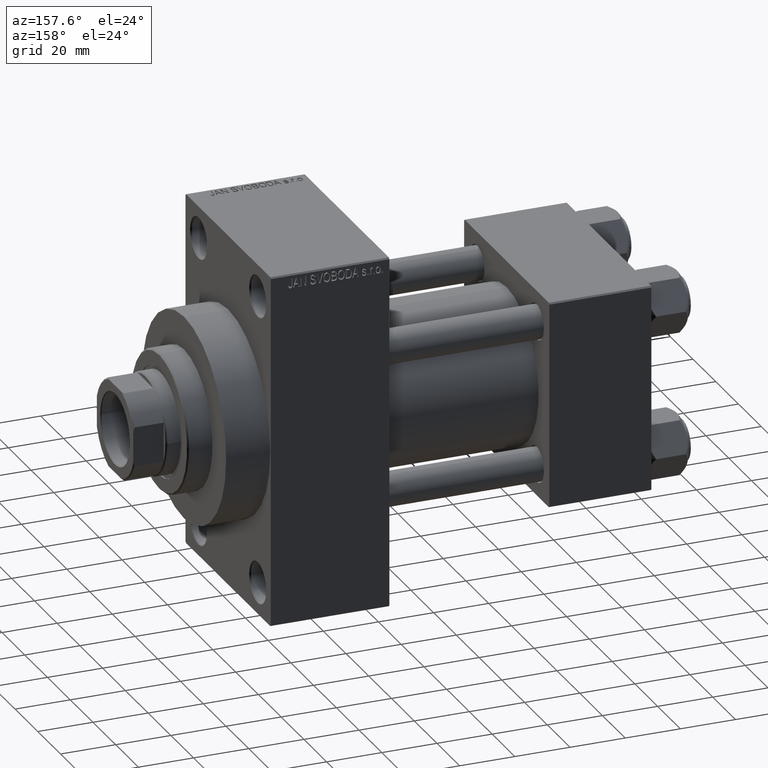
[diagram: clean part render]
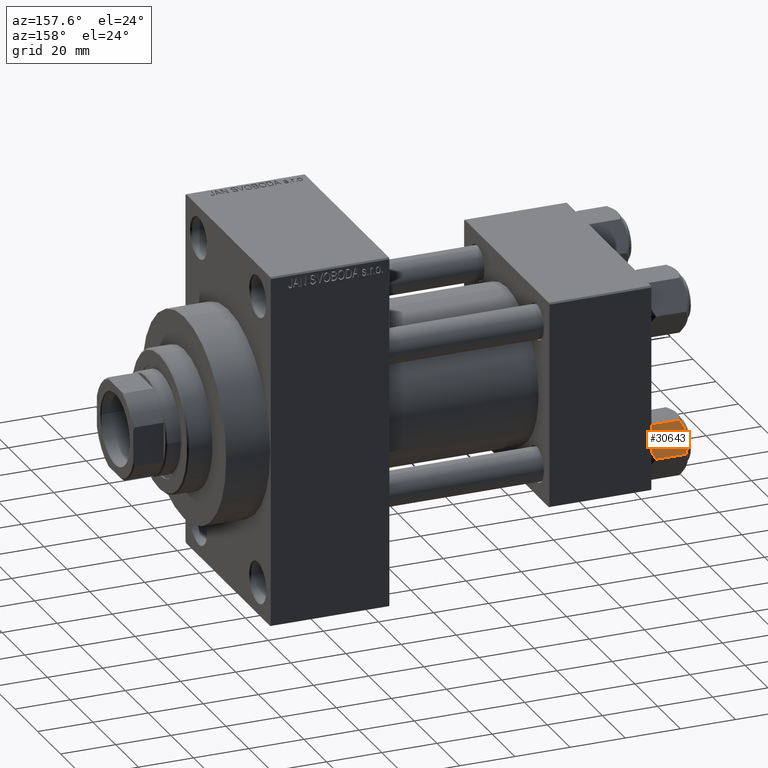
[diagram: same view with one face highlighted and labeled with its STEP entity id]
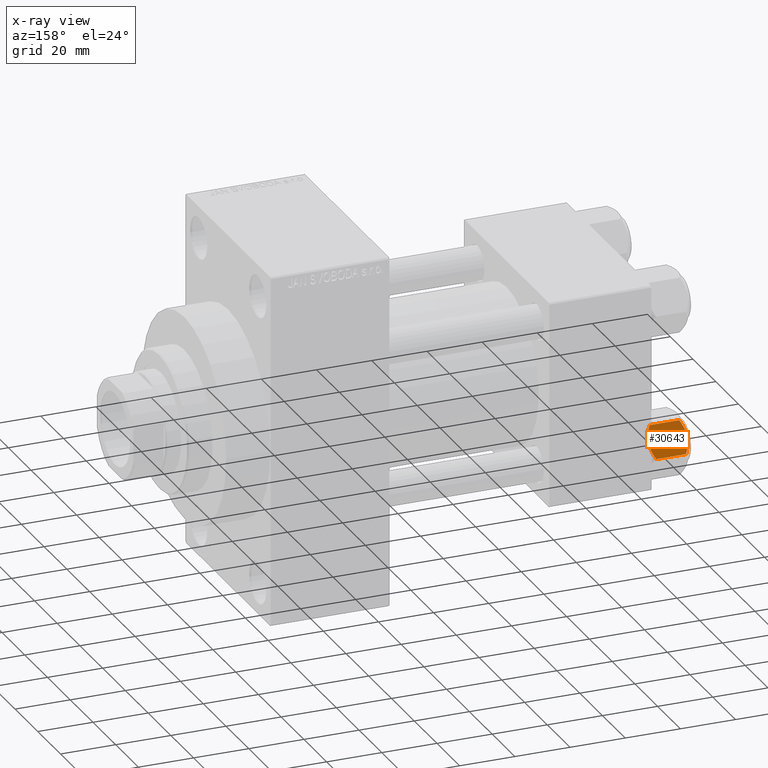
[diagram: x-ray of the same camera — body ghosted, the highlighted face saturated]
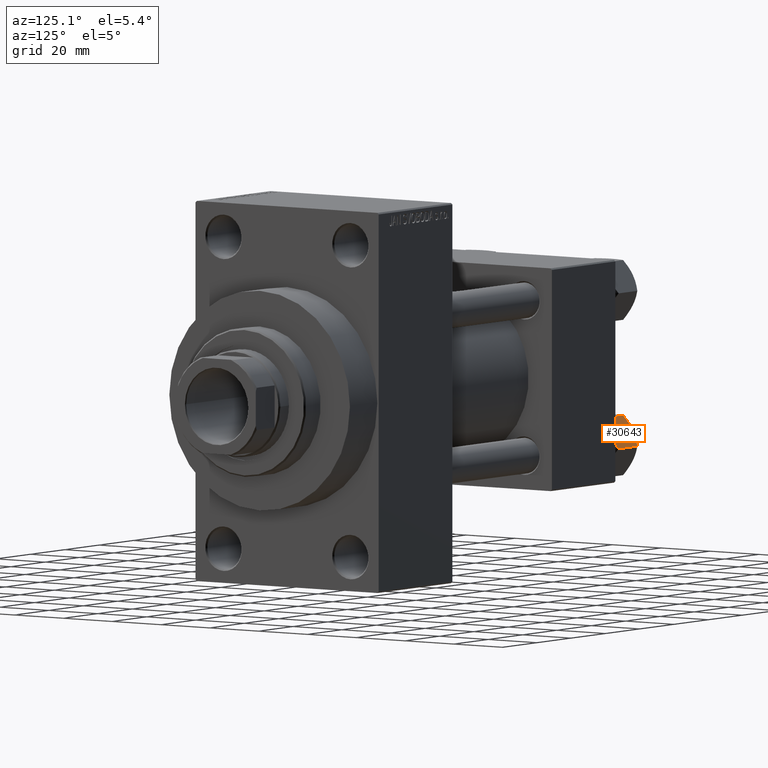
[diagram: same view with one face highlighted and labeled with its STEP entity id]
A machine part, auxiliary view. The second image highlights one B-rep face of the part: STEP entity #30643.
The next image is the same camera in x-ray: the body ghosted, the highlighted face saturated — about 0% of this face is hidden behind the body in this view.
A second angle (auxiliary view) of the same face is appended — the face is thin or edge-on in the first view.
In plain terms, the highlighted planar face has unit normal (0, -0.866, -0.5).
Its self-contained STEP definition (entity closure, byte-faithful):
#18 = CARTESIAN_POINT ( 'NONE',  ( -8.209704053696567527, 5.906805847843728863, -14.00000000000000355 ) ) ;
#718 = ORIENTED_EDGE ( 'NONE', *, *, #24172, .F. ) ;
#896 = CARTESIAN_POINT ( 'NONE',  ( -9.974696630283190757, 2.849749030213796885, -13.69973261901326111 ) ) ;
#941 = CARTESIAN_POINT ( 'NONE',  ( -5.809999999999997833, 10.06321519197518022, -12.44321519197518633 ) ) ;
#1633 = CARTESIAN_POINT ( 'NONE',  ( -6.731401448974986934, 8.467301068182916168, -0.7141438259524646170 ) ) ;
#2810 = PLANE ( 'NONE',  #45243 ) ;
#3598 = CARTESIAN_POINT ( 'NONE',  ( -8.715000000000003411, 5.031607595987592774, -14.00000000000000000 ) ) ;
#3838 = CARTESIAN_POINT ( 'NONE',  ( -5.809999999999997833, 10.06321519197518022, -12.44321519197518633 ) ) ;
#3964 = ORIENTED_EDGE ( 'NONE', *, *, #37774, .F. ) ;
#4746 = CARTESIAN_POINT ( 'NONE',  ( -5.809999999999997833, 10.06321519197518022, -1.556784808024814115 ) ) ;
#5462 = CARTESIAN_POINT ( 'NONE',  ( -7.455303369716805406, 7.213466161761384221, -0.3002673809867362764 ) ) ;
#7655 = VERTEX_POINT ( 'NONE', #10973 ) ;
#7773 = DIRECTION ( 'NONE',  ( -0.000000000000000000, -0.000000000000000000, 1.000000000000000000 ) ) ;
#8263 = CARTESIAN_POINT ( 'NONE',  ( -8.715000000000003411, 5.031607595987592774, -14.00000000000000000 ) ) ;
#8304 = CARTESIAN_POINT ( 'NONE',  ( -9.227666995912100489, 4.143642311704128112, -13.96005881939309212 ) ) ;
#9282 = CARTESIAN_POINT ( 'NONE',  ( -8.715000000000003411, 5.031607595987592774, 0.000000000000000000 ) ) ;
#9747 = DIRECTION ( 'NONE',  ( 0.8660254037844385966, -0.5000000000000002220, 0.000000000000000000 ) ) ;
#10413 = CARTESIAN_POINT ( 'NONE',  ( -9.220295946303428636, 4.156409344131455796, 3.796401669593772542E-15 ) ) ;
#10973 = CARTESIAN_POINT ( 'NONE',  ( -8.715000000000003411, 5.031607595987592774, 0.000000000000000000 ) ) ;
#11008 = CARTESIAN_POINT ( 'NONE',  ( -6.733375043383497349, 8.463882702393844326, -13.28854452935655317 ) ) ;
#12410 = CARTESIAN_POINT ( 'NONE',  ( -5.809999999999997833, 10.06321519197518022, -1.556784808024814115 ) ) ;
#13502 = CARTESIAN_POINT ( 'NONE',  ( -11.61999999999999922, 6.270720075510426383E-15, -12.44321519197518988 ) ) ;
#15189 = B_SPLINE_CURVE_WITH_KNOTS ( 'NONE', 3,
 ( #3598, #18, #43692, #11008, #25551, #3838 ),
 .UNSPECIFIED., .F., .F.,
 ( 4, 2, 4 ),
 ( 0.006022845781655582903, 0.009013049135303629819, 0.01200325248895167674 ),
 .UNSPECIFIED. ) ;
#15474 = CARTESIAN_POINT ( 'NONE',  ( -9.729165168613654657, 3.275021996682086378, -13.80960203119266261 ) ) ;
#15731 = CARTESIAN_POINT ( 'NONE',  ( -6.265545725125282850, 9.274186850887385702, -1.101239082899533539 ) ) ;
#16914 = DIRECTION ( 'NONE',  ( 0.5000000000000001110, 0.8660254037844384856, 0.000000000000000000 ) ) ;
#16985 = EDGE_LOOP ( 'NONE', ( #718, #25076, #46203, #31512, #30103, #3964 ) ) ;
#17148 = FACE_OUTER_BOUND ( 'NONE', #16985, .T. ) ;
#18514 = LINE ( 'NONE', #33058, #37665 ) ;
#20080 = VERTEX_POINT ( 'NONE', #44123 ) ;
#21378 = CARTESIAN_POINT ( 'NONE',  ( -10.69662495661650148, 1.599332489581337668, -0.7114554706434472742 ) ) ;
#22830 = EDGE_CURVE ( 'NONE', #40166, #7655, #46459, .T. ) ;
#22838 = CARTESIAN_POINT ( 'NONE',  ( -8.969430103550379840, 4.590921729663318018, -14.00000000000000355 ) ) ;
#23790 = CARTESIAN_POINT ( 'NONE',  ( -11.61999999999999922, 6.270720075510426383E-15, -12.44321519197518988 ) ) ;
#24172 = EDGE_CURVE ( 'NONE', #26210, #41638, #36049, .T. ) ;
#24713 = CARTESIAN_POINT ( 'NONE',  ( -11.16498164529022219, 0.7881149087337359083, -1.101766453314949379 ) ) ;
#25076 = ORIENTED_EDGE ( 'NONE', *, *, #39933, .T. ) ;
#25102 = B_SPLINE_CURVE_WITH_KNOTS ( 'NONE', 3,
 ( #43091, #10413, #36166, #21378, #24713, #35460 ),
 .UNSPECIFIED., .F., .F.,
 ( 4, 2, 4 ),
 ( 0.006022845781655589842, 0.009013049135303633289, 0.01200325248895167674 ),
 .UNSPECIFIED. ) ;
#25551 = CARTESIAN_POINT ( 'NONE',  ( -6.265018354709773973, 9.275100283241455301, -12.89823354668504862 ) ) ;
#26210 = VERTEX_POINT ( 'NONE', #13502 ) ;
#26678 = EDGE_CURVE ( 'NONE', #7655, #20080, #25102, .T. ) ;
#26884 = CARTESIAN_POINT ( 'NONE',  ( -10.69859855102500923, 1.595914123792268713, -13.28585617404753805 ) ) ;
#30103 = ORIENTED_EDGE ( 'NONE', *, *, #31839, .F. ) ;
#30267 = CARTESIAN_POINT ( 'NONE',  ( -8.202333004087897450, 5.919572880271055659, -0.03994118060690620559 ) ) ;
#30643 = ADVANCED_FACE ( 'NONE', ( #17148 ), #2810, .F. ) ;
#31512 = ORIENTED_EDGE ( 'NONE', *, *, #22830, .F. ) ;
#31839 = EDGE_CURVE ( 'NONE', #33346, #40166, #18514, .T. ) ;
#33058 = CARTESIAN_POINT ( 'NONE',  ( -5.809999999999997833, 10.06321519197518022, -14.00000000000000000 ) ) ;
#33346 = VERTEX_POINT ( 'NONE', #941 ) ;
#33590 = CARTESIAN_POINT ( 'NONE',  ( -11.16445427487471420, 0.7890283410878028425, -12.89876091710047490 ) ) ;
#35460 = CARTESIAN_POINT ( 'NONE',  ( -11.61999999999999922, 6.270720075409452187E-15, -1.556784808024810562 ) ) ;
#35829 = LINE ( 'NONE', #47065, #46900 ) ;
#36049 = B_SPLINE_CURVE_WITH_KNOTS ( 'NONE', 3,
 ( #23790, #33590, #26884, #896, #15474, #8304, #22838, #37394 ),
 .UNSPECIFIED., .F., .F.,
 ( 4, 2, 2, 4 ),
 ( 2.544312114905218436E-07, 0.003011550106433537322, 0.004517197944044560112, 0.006022845781655582903 ),
 .UNSPECIFIED. ) ;
#36166 = CARTESIAN_POINT ( 'NONE',  ( -9.716999946243694453, 3.296092779912229265, -0.1545239700039824915 ) ) ;
#37394 = CARTESIAN_POINT ( 'NONE',  ( -8.715000000000003411, 5.031607595987592774, -14.00000000000000000 ) ) ;
#37665 = VECTOR ( 'NONE', #7773, 1000.000000000000000 ) ;
#37774 = EDGE_CURVE ( 'NONE', #41638, #33346, #15189, .T. ) ;
#39556 = CARTESIAN_POINT ( 'NONE',  ( -11.61999999999999922, 6.288644352490894150E-15, -14.00000000000000000 ) ) ;
#39933 = EDGE_CURVE ( 'NONE', #26210, #20080, #35829, .T. ) ;
#40166 = VERTEX_POINT ( 'NONE', #12410 ) ;
#41011 = CARTESIAN_POINT ( 'NONE',  ( -7.700834831386344170, 6.788193195293096949, -0.1903979688073401122 ) ) ;
#41638 = VERTEX_POINT ( 'NONE', #8263 ) ;
#41955 = CARTESIAN_POINT ( 'NONE',  ( -8.460569896449618099, 5.472293462311865753, 3.939644352451667145E-15 ) ) ;
#43091 = CARTESIAN_POINT ( 'NONE',  ( -8.715000000000003411, 5.031607595987592774, 0.000000000000000000 ) ) ;
#43231 = DIRECTION ( 'NONE',  ( -0.000000000000000000, -0.000000000000000000, 1.000000000000000000 ) ) ;
#43692 = CARTESIAN_POINT ( 'NONE',  ( -7.713000053756306151, 6.767122412062953174, -13.84547602999602134 ) ) ;
#44123 = CARTESIAN_POINT ( 'NONE',  ( -11.61999999999999922, 6.270720075409452187E-15, -1.556784808024810562 ) ) ;
#45243 = AXIS2_PLACEMENT_3D ( 'NONE', #39556, #9747, #16914 ) ;
#46203 = ORIENTED_EDGE ( 'NONE', *, *, #26678, .F. ) ;
#46459 = B_SPLINE_CURVE_WITH_KNOTS ( 'NONE', 3,
 ( #4746, #15731, #1633, #5462, #41011, #30267, #41955, #9282 ),
 .UNSPECIFIED., .F., .F.,
 ( 4, 2, 2, 4 ),
 ( 2.544312114902182352E-07, 0.003011550106433540791, 0.004517197944044565316, 0.006022845781655589842 ),
 .UNSPECIFIED. ) ;
#46900 = VECTOR ( 'NONE', #43231, 1000.000000000000000 ) ;
#47065 = CARTESIAN_POINT ( 'NONE',  ( -11.61999999999999922, 6.288644352490894150E-15, -14.00000000000000000 ) ) ;